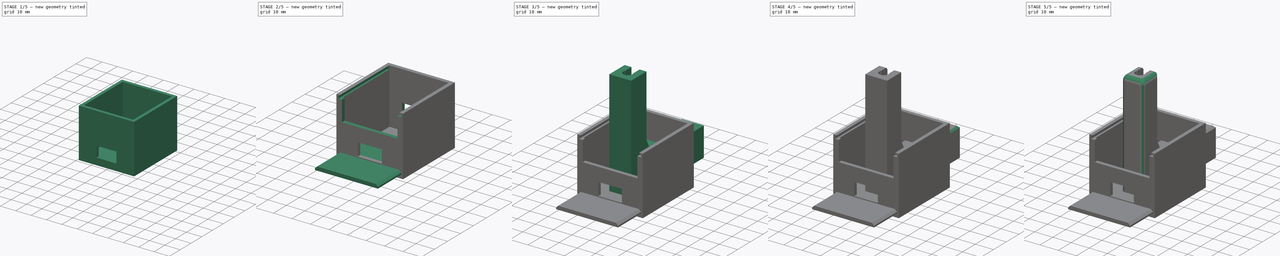
[diagram: build sequence overview — one tinted view per stage of 5, left to right]
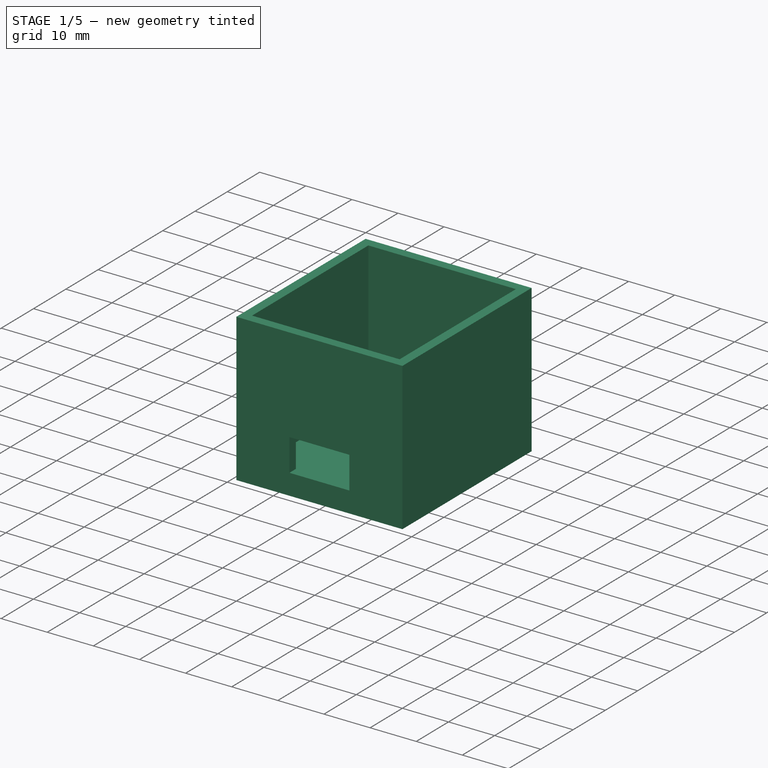
[diagram: stage 1 of 5 — iso view after this stage's code; geometry added in this stage tinted green]
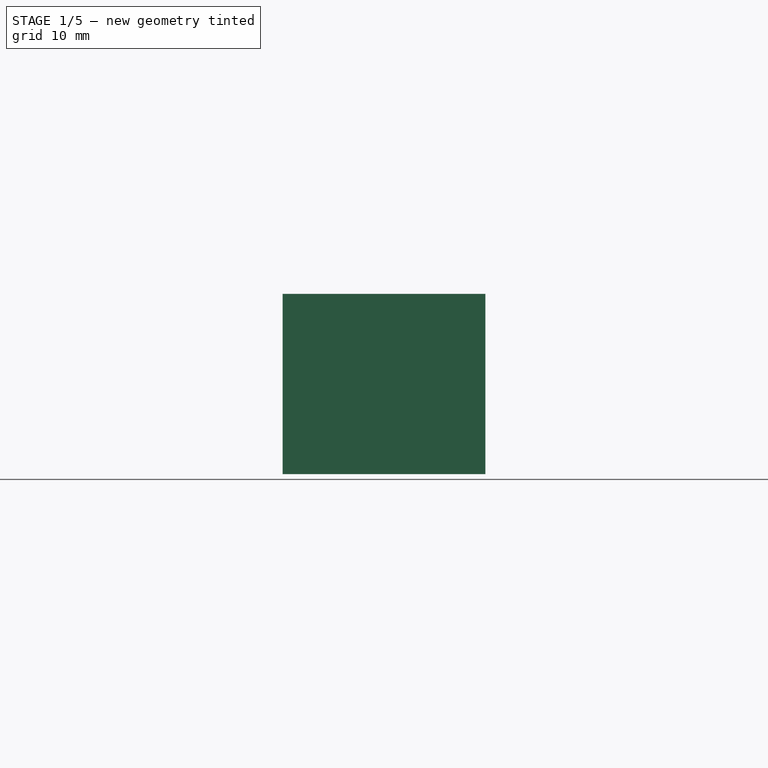
[diagram: stage 1 of 5 — front view after this stage's code; geometry added in this stage tinted green]
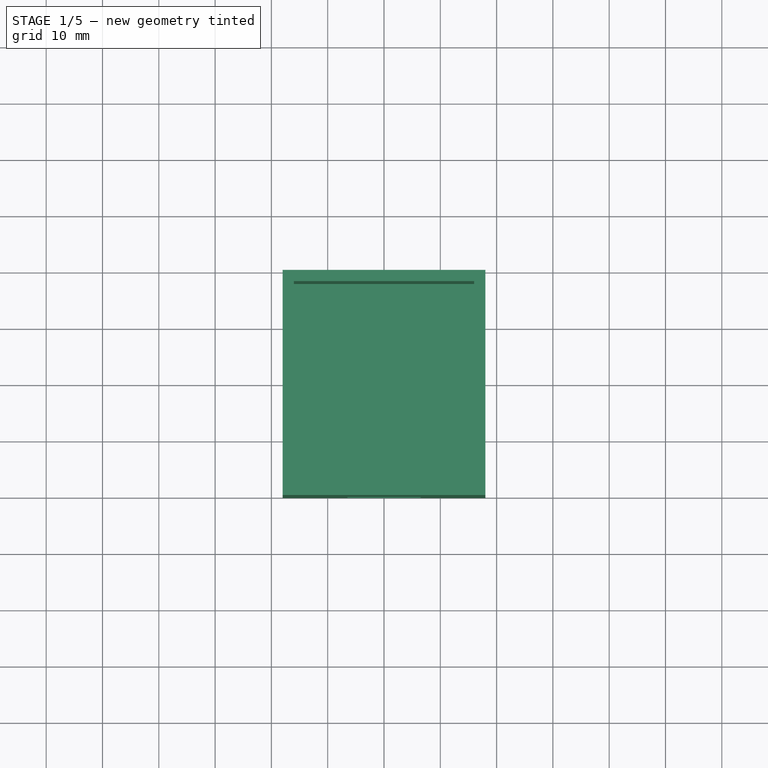
[diagram: stage 1 of 5 — top view after this stage's code; geometry added in this stage tinted green]
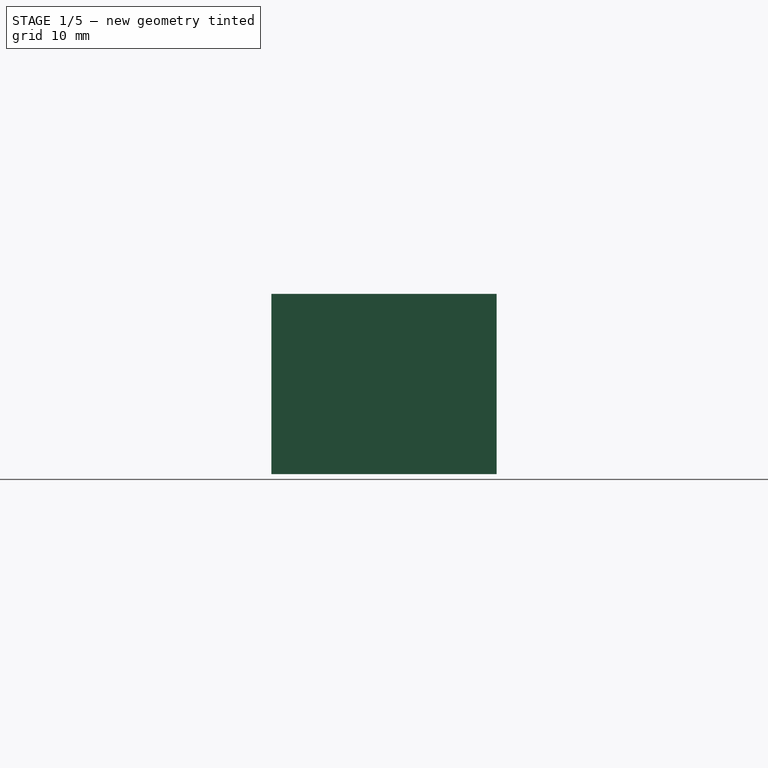
[diagram: stage 1 of 5 — right view after this stage's code; geometry added in this stage tinted green]
FCSTD DOCUMENT  (FreeCAD 1.0R39319 (Git))
Label: PioneerIRLedHolder
License: All rights reserved
LicenseURL: https://en.wikipedia.org/wiki/All_rights_reserved
objects: Sketcher::SketchObject×13, PartDesign::Pocket×8, PartDesign::Pad×4, PartDesign::Body×3, PartDesign::Chamfer×2, PartDesign::Fillet×2, PartDesign::Thickness×1
note: 80 computed .brp shape members not serialized (recipe doc carries the construction recipe); baked Part::Feature solids carry a one-line shape summary decoded from their .brp

FEATURE [PartDesign::Body] Body
  AllowCompound = false
  Group = -> [Sketch,Pad,Sketch001,Pocket,Sketch002,Pocket001,Sketch003,Pocket002,Sketch004,Pocket003,Chamfer,Fillet,Fillet001,Chamfer001]
  Origin = -> Origin
  Tip = -> Chamfer001
FEATURE [Sketcher::SketchObject] Sketch005
  ArcFitTolerance = 1e-06
  AttachmentSupport = -> [XY_Plane001]
  FullyConstrained = true
  MakeInternals = false
  MapMode = 5
  sketch-geometry (5):
    g0: LineSegment StartX=-16 StartY=-18 StartZ=0 EndX=16 EndY=-18 EndZ=0
    g1: LineSegment StartX=16 StartY=-18 StartZ=0 EndX=16 EndY=18 EndZ=0
    g2: LineSegment StartX=16 StartY=18 StartZ=0 EndX=-16 EndY=18 EndZ=0
    g3: LineSegment StartX=-16 StartY=18 StartZ=0 EndX=-16 EndY=-18 EndZ=0
    g4: GeomPoint [constr] X=0 Y=0 Z=0
  constraints (12):
    c: Coincident(g0,g1)
    c: Coincident(g1,g2)
    c: Coincident(g2,g3)
    c: Coincident(g3,g0)
    c: Horizontal(g0)
    c: Horizontal(g2)
    c: Vertical(g1)
    c: Vertical(g3)
    c: Symmetric(g2,g0,g4)
    c: Distance(g1,g3) = 32
    c: Distance(g0,g2) = 36
    c: Coincident(g4,g-1)
FEATURE [PartDesign::Pad] Pad001
  Direction = (0,0,1)
  Length = 30
  Length2 = 10
  Profile = -> Sketch005
  ReferenceAxis = -> Sketch005 [N_Axis]
  Refine = true
  Suppressed = false
  Type = 0
FEATURE [PartDesign::Body] Body002  label="CoverBody"
  AllowCompound = false
  Group = -> [Sketch010,Pad003,Sketch011,Pad004]
  Origin = -> Origin002
  Tip = -> Pad004
FEATURE [PartDesign::Thickness] Thickness
  Base = -> Pad001 [Face6]
  BaseFeature = -> Pad001
  Intersection = false
  Join = 1
  Mode = 0
  Refine = true
  SupportTransform = false
  Suppressed = false
  Value = 2
FEATURE [PartDesign::Pocket] Pocket004
  BaseFeature = -> Thickness
  Direction = (0,1,-2e-16)
  Length = 5
  Length2 = 5
  Profile = -> Sketch006
  ReferenceAxis = -> Sketch006 [N_Axis]
  Refine = true
  Reversed = true
  Suppressed = false
  Type = 1
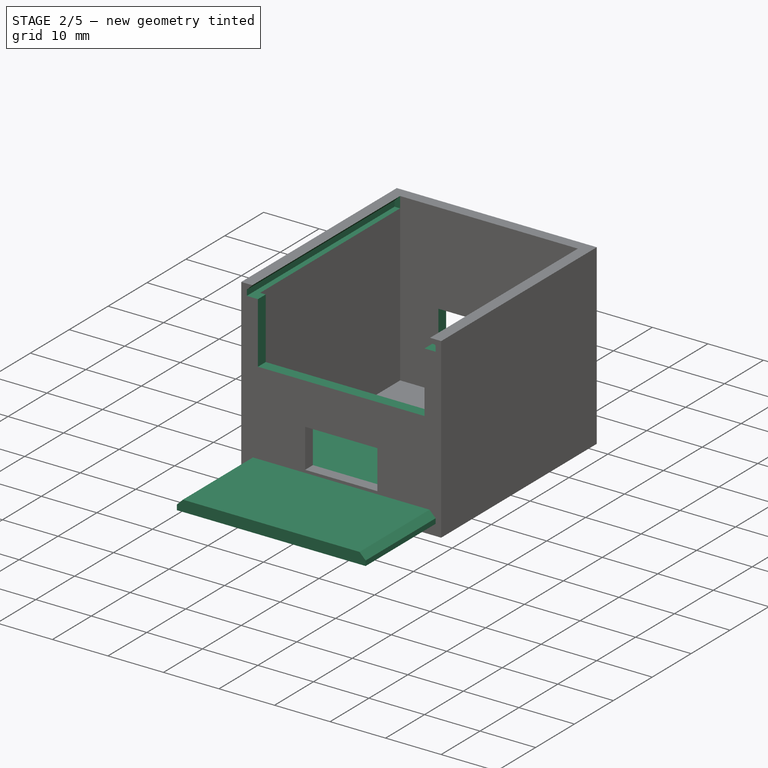
[diagram: stage 2 of 5 — iso view after this stage's code; geometry added in this stage tinted green]
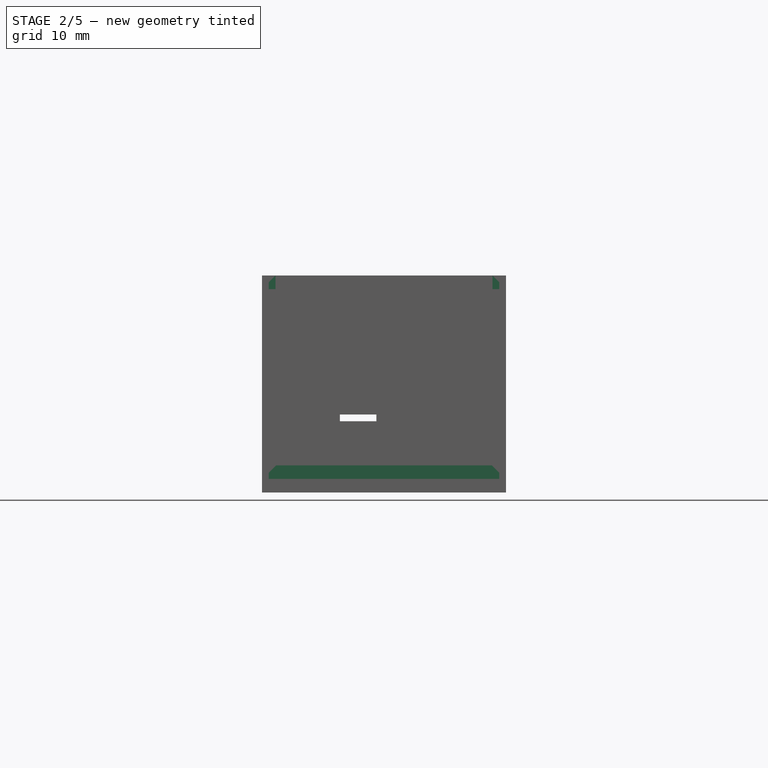
[diagram: stage 2 of 5 — front view after this stage's code; geometry added in this stage tinted green]
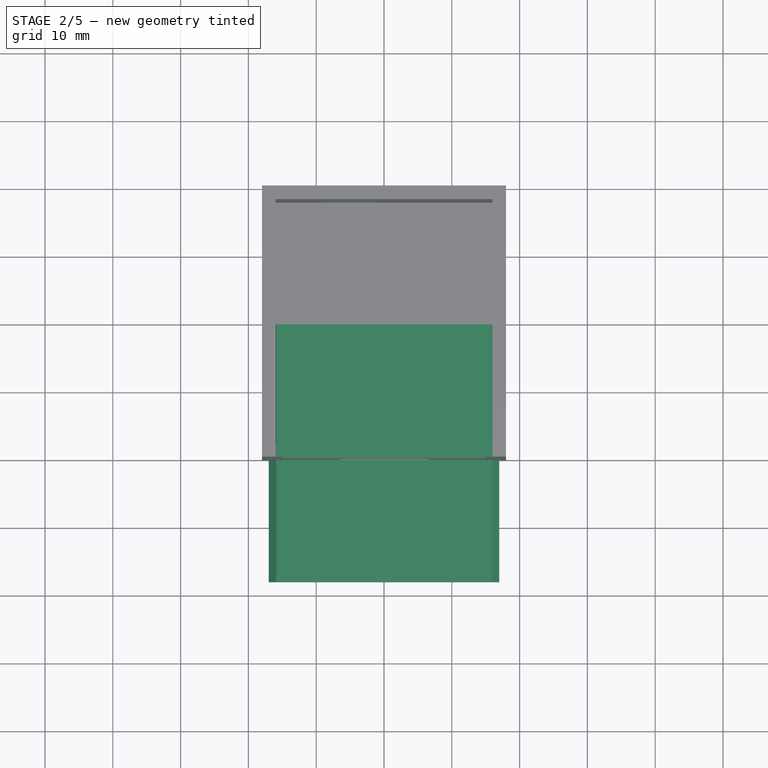
[diagram: stage 2 of 5 — top view after this stage's code; geometry added in this stage tinted green]
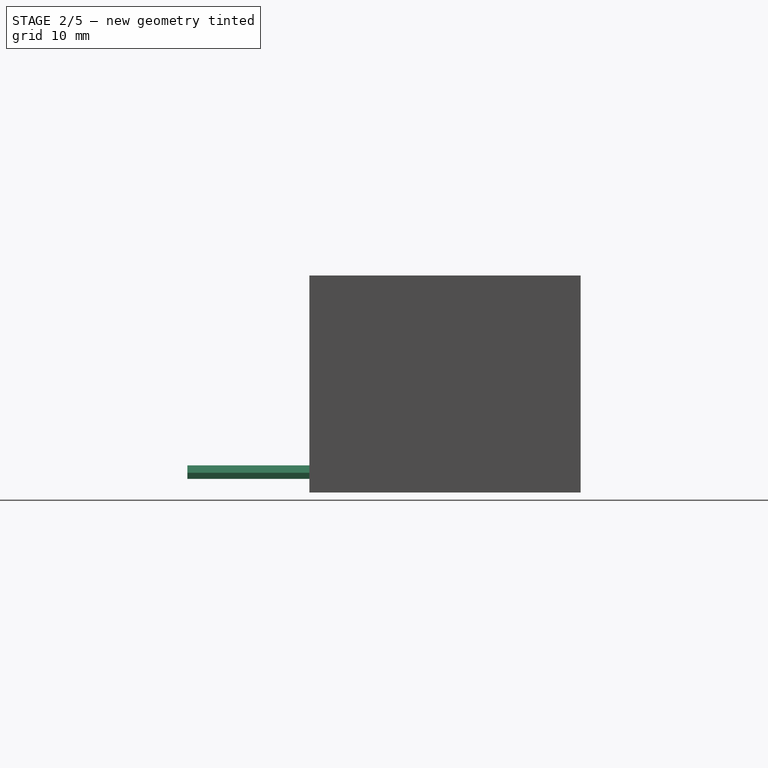
[diagram: stage 2 of 5 — right view after this stage's code; geometry added in this stage tinted green]
FEATURE [Sketcher::SketchObject] Sketch006
  ArcFitTolerance = 1e-06
  AttachmentSupport = -> [XZ_Plane001]
  FullyConstrained = true
  MakeInternals = false
  MapMode = 5
  Placement = pos=(0,0,0) rot=(1,0,0;1.5708rad)
  sketch-geometry (5):
    g0: LineSegment StartX=-6.5 StartY=9.5 StartZ=0 EndX=-6.5 EndY=2.5 EndZ=0
    g1: LineSegment StartX=-6.5 StartY=2.5 StartZ=0 EndX=6.5 EndY=2.5 EndZ=0
    g2: LineSegment StartX=6.5 StartY=2.5 StartZ=0 EndX=6.5 EndY=9.5 EndZ=0
    g3: LineSegment StartX=6.5 StartY=9.5 StartZ=0 EndX=-6.5 EndY=9.5 EndZ=0
    g4: GeomPoint [constr] X=0 Y=6 Z=0
  constraints (13):
    c: Coincident(g0,g1)
    c: Coincident(g1,g2)
    c: Coincident(g2,g3)
    c: Coincident(g3,g0)
    c: Vertical(g0)
    c: Vertical(g2)
    c: Horizontal(g1)
    c: Horizontal(g3)
    c: Symmetric(g2,g0,g4)
    c: PointOnObject(g4,g-2)
    c: DistanceY(g2,g2) = 7
    c: DistanceX(g3,g3) = 13
    c: DistanceY(g-1,g4) = 6
FEATURE [Sketcher::SketchObject] Sketch007
  ArcFitTolerance = 1e-06
  AttachmentSupport = -> [XZ_Plane001]
  FullyConstrained = true
  MakeInternals = false
  MapMode = 5
  Placement = pos=(0,0,0) rot=(1,0,0;1.5708rad)
  expr: Constraints[12] = -2.56 * 2
  sketch-geometry (5):
    g0: LineSegment StartX=-9.12 StartY=8.5 StartZ=0 EndX=-1.12 EndY=8.5 EndZ=0
    g1: LineSegment StartX=-1.12 StartY=8.5 StartZ=0 EndX=-1.12 EndY=13.5 EndZ=0
    g2: LineSegment StartX=-1.12 StartY=13.5 StartZ=0 EndX=-9.12 EndY=13.5 EndZ=0
    g3: LineSegment StartX=-9.12 StartY=13.5 StartZ=0 EndX=-9.12 EndY=8.5 EndZ=0
    g4: GeomPoint [constr] X=-5.12 Y=11 Z=0
  constraints (13):
    c: Coincident(g0,g1)
    c: Coincident(g1,g2)
    c: Coincident(g2,g3)
    c: Coincident(g3,g0)
    c: Horizontal(g0)
    c: Horizontal(g2)
    c: Vertical(g1)
    c: Vertical(g3)
    c: Symmetric(g2,g0,g4)
    c: Distance(g1,g3) = 8
    c: Distance(g0,g2) = 5
    c: DistanceY(g-1,g4) = 11
    c: DistanceX(g-1,g4) = -5.12
FEATURE [Sketcher::SketchObject] Sketch009
  ArcFitTolerance = 1e-06
  AttachmentSupport = -> [XY_Plane001]
  FullyConstrained = true
  MakeInternals = false
  MapMode = 5
  sketch-geometry (11):
    g0: LineSegment StartX=-29 StartY=7.5 StartZ=0 EndX=-29 EndY=-7.5 EndZ=0
    g1: LineSegment StartX=-24 StartY=-12.5 StartZ=0 EndX=-14 EndY=-12.5 EndZ=0
    g2: LineSegment StartX=-14 StartY=-12.5 StartZ=0 EndX=-14 EndY=12.5 EndZ=0
    g3: LineSegment StartX=-14 StartY=12.5 StartZ=0 EndX=-24 EndY=12.5 EndZ=0
    g4: GeomPoint [constr] X=-21.5 Y=0 Z=0
    g5: ArcOfCircle CenterX=-24 CenterY=7.5 CenterZ=0 NormalX=0 NormalY=0 NormalZ=1 AngleXU=0 Radius=5 StartAngle=1.5708 EndAngle=3.14159
    g6: GeomPoint [constr] X=-29 Y=12.5 Z=0
    g7: ArcOfCircle CenterX=-24 CenterY=-7.5 CenterZ=0 NormalX=0 NormalY=0 NormalZ=1 AngleXU=0 Radius=5 StartAngle=3.14159 EndAngle=4.71239
    g8: GeomPoint [constr] X=-29 Y=-12.5 Z=0
    g9: Circle CenterX=-24 CenterY=7.5 CenterZ=0 NormalX=0 NormalY=0 NormalZ=1 AngleXU=0 Radius=2.5
    g10: Circle CenterX=-24 CenterY=-7.5 CenterZ=0 NormalX=0 NormalY=0 NormalZ=1 AngleXU=0 Radius=2.5
  constraints (25):
    c: Coincident(g1,g2)
    c: Coincident(g2,g3)
    c: Vertical(g0)
    c: Vertical(g2)
    c: Horizontal(g1)
    c: Horizontal(g3)
    c: Symmetric(g2,g6,g4)
    c: PointOnObject(g4,g-1)
    c: DistanceY(g8,g6) = 25
    c: DistanceX(g6,g3) = 15
    c: PointOnObject(g6,g3)
    c: PointOnObject(g6,g0)
    c: Tangent(g3,g5) = -1.5708
    c: Tangent(g0,g5) = -1.5708
    c: PointOnObject(g8,g0)
    c: PointOnObject(g8,g1)
    c: Tangent(g0,g7) = -1.5708
    c: Tangent(g1,g7) = -1.5708
    c: Radius(g5) = 5
    c: Equal(g5,g7)
    c: Diameter(g9) = 5
    c: Coincident(g9,g5)
    c: Coincident(g10,g7)
    c: Equal(g10,g9)
    c: DistanceX(g5,g-1) = 24
FEATURE [Sketcher::SketchObject] Sketch010
  ArcFitTolerance = 1e-06
  AttachmentSupport = -> [XZ_Plane002]
  FullyConstrained = true
  MakeInternals = false
  MapMode = 5
  Placement = pos=(0,0,0) rot=(1,0,0;1.5708rad)
  sketch-geometry (8):
    g0: LineSegment StartX=-17 StartY=0 StartZ=0 EndX=17 EndY=0 EndZ=0
    g1: LineSegment StartX=-17 StartY=0 StartZ=0 EndX=-17 EndY=0.9 EndZ=0
    g2: LineSegment StartX=-17 StartY=0.9 StartZ=0 EndX=-15.9 EndY=2 EndZ=0
    g3: LineSegment StartX=-15.9 StartY=2 StartZ=0 EndX=15.9 EndY=2 EndZ=0
    g4: LineSegment StartX=15.9 StartY=2 StartZ=0 EndX=17 EndY=0.9 EndZ=0
    g5: LineSegment StartX=17 StartY=0.9 StartZ=0 EndX=17 EndY=0 EndZ=0
    g6: LineSegment [constr] StartX=-17 StartY=0.9 StartZ=0 EndX=-15.9 EndY=0.9 EndZ=0
    g7: LineSegment [constr] StartX=-15.9 StartY=0.9 StartZ=0 EndX=-15.9 EndY=2 EndZ=0
  constraints (20):
    c: Distance(g0) = 34
    c: PointOnObject(g0,g-1)
    c: Symmetric(g0,g0,g-1)
    c: Coincident(g0,g1)
    c: Vertical(g1)
    c: Coincident(g1,g2)
    c: Coincident(g2,g3)
    c: Coincident(g3,g4)
    c: Coincident(g4,g5)
    c: Coincident(g5,g0)
    c: Symmetric(g1,g4,g-2)
    c: Symmetric(g3,g2,g-2)
    c: DistanceY(g0,g2) = 2
    c: DistanceY(g1,g1) = 0.9
    c: Coincident(g1,g6)
    c: Horizontal(g6)
    c: Coincident(g6,g7)
    c: Coincident(g7,g2)
    c: Vertical(g7)
    c: Equal(g7,g6)
FEATURE [PartDesign::Pad] Pad003
  Direction = (0,-1,2e-16)
  Length = 38
  Length2 = 10
  Placement = pos=(0,0,0) rot=(1,0,0;1.5708rad)
  Profile = -> Sketch010
  ReferenceAxis = -> Sketch010 [N_Axis]
  Refine = true
  Suppressed = false
  Type = 0
FEATURE [PartDesign::Pocket] Pocket005
  BaseFeature = -> Pocket004
  Direction = (0,1,-2e-16)
  Length = 5
  Length2 = 5
  Profile = -> Sketch007
  ReferenceAxis = -> Sketch007 [N_Axis]
  Refine = true
  Suppressed = false
  Type = 1
FEATURE [Sketcher::SketchObject] Sketch008
  ArcFitTolerance = 1e-06
  AttachmentSupport = -> [Pocket005]
  ExternalGeometry = -> [Pocket005]
  FullyConstrained = true
  MakeInternals = false
  MapMode = 5
  Placement = pos=(0,20,0) rot=(0,0.707107,0.707107;3.14159rad)
  sketch-geometry (6):
    g0: LineSegment StartX=-16 StartY=30 StartZ=0 EndX=16 EndY=30 EndZ=0
    g1: LineSegment StartX=16 StartY=30 StartZ=0 EndX=17 EndY=29 EndZ=0
    g2: LineSegment StartX=-17 StartY=29 StartZ=0 EndX=-16 EndY=30 EndZ=0
    g3: LineSegment StartX=-17 StartY=29 StartZ=0 EndX=-17 EndY=28 EndZ=0
    g4: LineSegment StartX=-17 StartY=28 StartZ=0 EndX=17 EndY=28 EndZ=0
    g5: LineSegment StartX=17 StartY=28 StartZ=0 EndX=17 EndY=29 EndZ=0
  constraints (16):
    c: PointOnObject(g0,g-3)
    c: Coincident(g0,g1)
    c: Coincident(g2,g0)
    c: Coincident(g2,g3)
    c: Vertical(g3)
    c: Coincident(g3,g4)
    c: Horizontal(g4)
    c: Coincident(g4,g5)
    c: Coincident(g5,g1)
    c: Vertical(g5)
    c: Symmetric(g0,g0,g-2)
    c: Symmetric(g2,g1,g-2)
    c: DistanceY(g3,g3) = 1
    c: DistanceY(g2,g0) = 1
    c: DistanceX(g-3,g2) = 1
    c: DistanceX(g-3,g0) = 2
FEATURE [PartDesign::Pocket] Pocket006
  BaseFeature = -> Pocket005
  Direction = (0,-1,2e-16)
  Length = 100
  Length2 = -2
  Profile = -> Sketch008
  ReferenceAxis = -> Sketch008 [N_Axis]
  Refine = true
  Suppressed = false
  Type = 4
FEATURE [Sketcher::SketchObject] Sketch012
  ArcFitTolerance = 1e-06
  AttachmentSupport = -> [XZ_Plane001]
  FullyConstrained = true
  MakeInternals = false
  MapMode = 5
  Placement = pos=(0,0,0) rot=(1,0,0;1.5708rad)
  sketch-geometry (9):
    g0: LineSegment StartX=-15 StartY=17 StartZ=0 EndX=15 EndY=17 EndZ=0
    g1: LineSegment StartX=15 StartY=17 StartZ=0 EndX=15 EndY=27 EndZ=0
    g2: LineSegment StartX=15 StartY=27 StartZ=0 EndX=-15 EndY=27 EndZ=0
    g3: LineSegment StartX=-15 StartY=27 StartZ=0 EndX=-15 EndY=17 EndZ=0
    g4: GeomPoint [constr] X=0 Y=22 Z=0
    g5: LineSegment StartX=-15 StartY=27 StartZ=0 EndX=15 EndY=27 EndZ=0
    g6: LineSegment StartX=15 StartY=27 StartZ=0 EndX=15 EndY=37 EndZ=0
    g7: LineSegment StartX=15 StartY=37 StartZ=0 EndX=-15 EndY=37 EndZ=0
    g8: LineSegment StartX=-15 StartY=37 StartZ=0 EndX=-15 EndY=27 EndZ=0
  constraints (23):
    c: Coincident(g0,g1)
    c: Coincident(g1,g2)
    c: Coincident(g2,g3)
    c: Coincident(g3,g0)
    c: Horizontal(g0)
    c: Horizontal(g2)
    c: Vertical(g1)
    c: Vertical(g3)
    c: Symmetric(g2,g0,g4)
    c: Distance(g1,g3) = 30
    c: Distance(g0,g2) = 10
    c: PointOnObject(g4,g-2)
    c: DistanceY(g-1,g4) = 22
    c: Coincident(g5,g6)
    c: Coincident(g6,g7)
    c: Coincident(g7,g8)
    c: Coincident(g8,g5)
    c: Horizontal(g7)
    c: Vertical(g6)
    c: Vertical(g8)
    c: Coincident(g5,g2)
    c: Coincident(g1,g5)
    c: DistanceY(g6,g6) = 10
FEATURE [PartDesign::Pocket] Pocket007
  BaseFeature = -> Pocket006
  Direction = (0,1,-2e-16)
  Length = 5
  Length2 = 5
  Profile = -> Sketch012
  ReferenceAxis = -> Sketch012 [N_Axis]
  Refine = true
  Reversed = true
  Suppressed = false
  Type = 1
FEATURE [PartDesign::Body] Body001  label="BoxBody"
  AllowCompound = false
  Group = -> [Sketch005,Pad001,Thickness,Sketch006,Pocket004,Sketch007,Pocket005,Sketch008,Pocket006,Sketch009,Sketch012,Pocket007]
  Origin = -> Origin001
  Tip = -> Pocket007
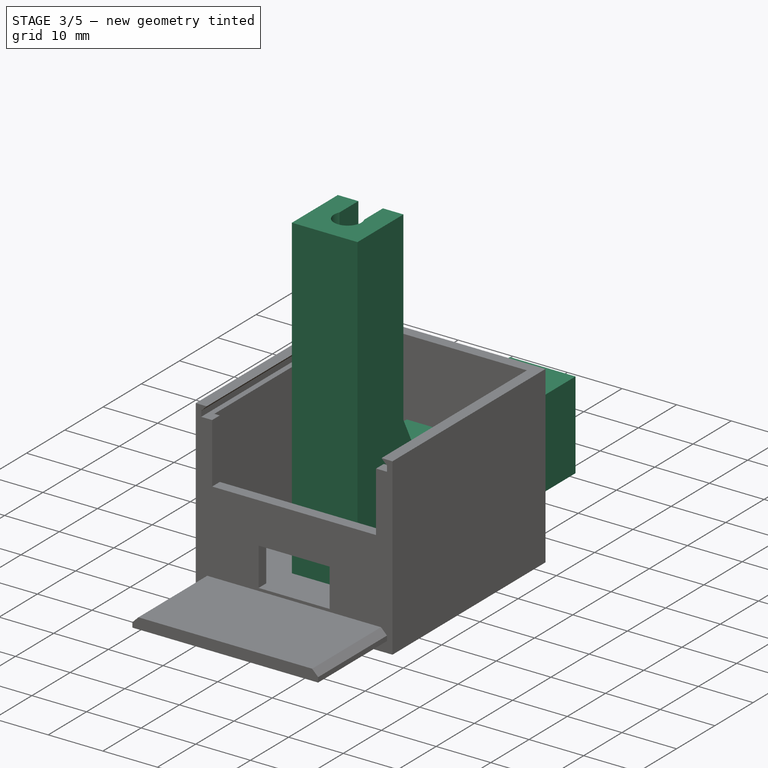
[diagram: stage 3 of 5 — iso view after this stage's code; geometry added in this stage tinted green]
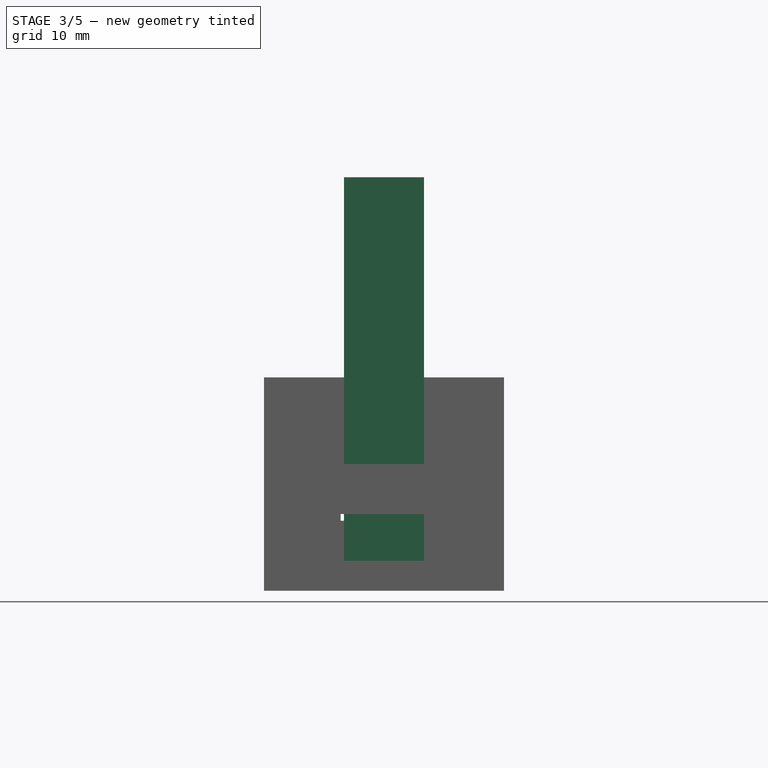
[diagram: stage 3 of 5 — front view after this stage's code; geometry added in this stage tinted green]
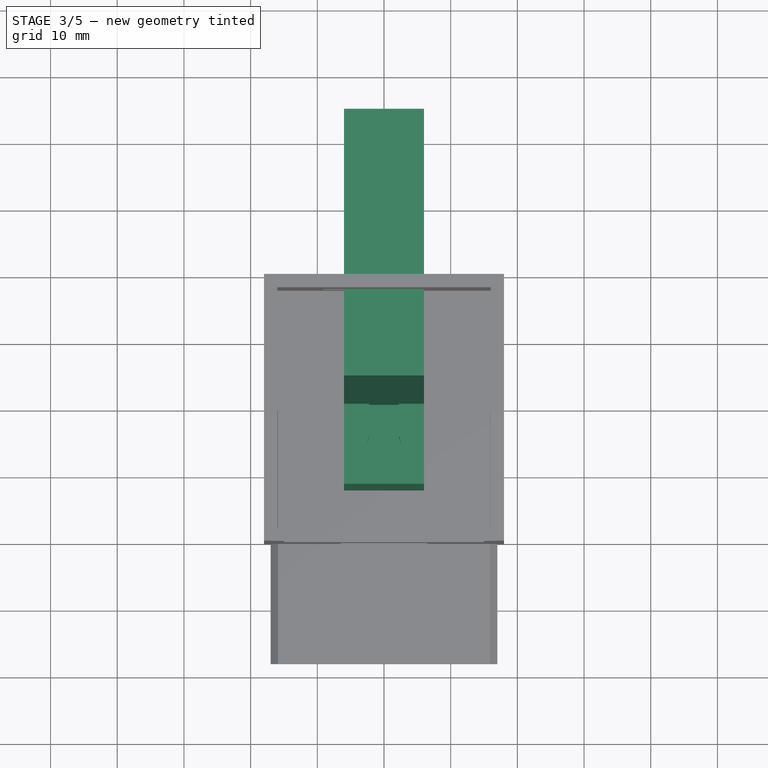
[diagram: stage 3 of 5 — top view after this stage's code; geometry added in this stage tinted green]
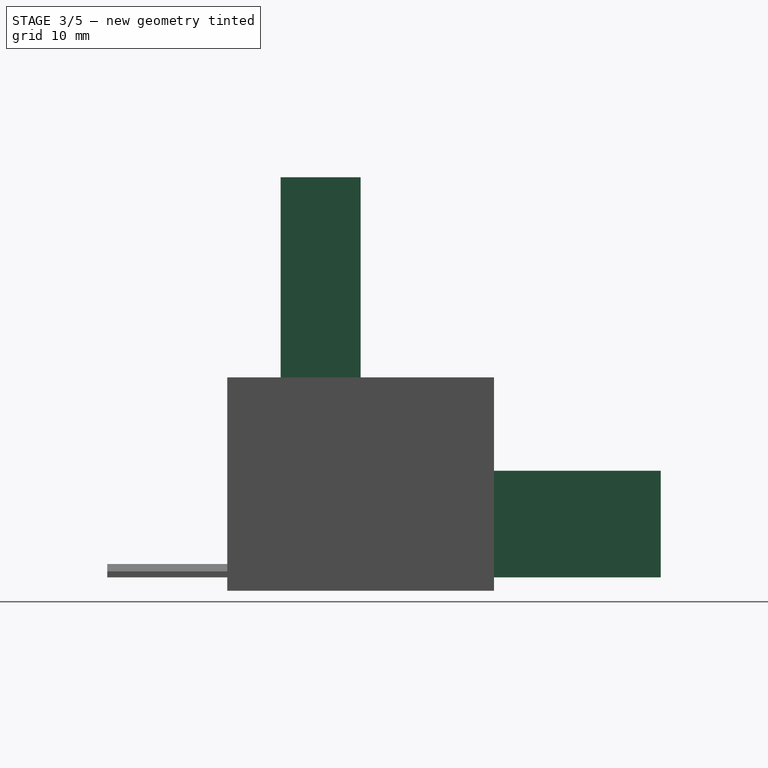
[diagram: stage 3 of 5 — right view after this stage's code; geometry added in this stage tinted green]
FEATURE [Sketcher::SketchObject] Sketch
  ArcFitTolerance = 1e-06
  AttachmentSupport = -> [YZ_Plane]
  FullyConstrained = true
  MakeInternals = false
  MapMode = 5
  Placement = pos=(0,0,0) rot=(0.57735,0.57735,0.57735;2.0944rad)
  sketch-geometry (7):
    g0: LineSegment StartX=45 StartY=0 StartZ=0 EndX=-12 EndY=0 EndZ=0
    g1: LineSegment StartX=-12 StartY=0 StartZ=0 EndX=-12 EndY=60 EndZ=0
    g2: LineSegment StartX=-12 StartY=60 StartZ=0 EndX=0 EndY=60 EndZ=0
    g3: LineSegment StartX=5 StartY=16 StartZ=0 EndX=45 EndY=16 EndZ=0
    g4: LineSegment StartX=45 StartY=16 StartZ=0 EndX=45 EndY=0 EndZ=0
    g5: LineSegment StartX=0 StartY=60 StartZ=0 EndX=0 EndY=26 EndZ=0
    g6: LineSegment StartX=0 StartY=26 StartZ=0 EndX=5 EndY=16 EndZ=0
  constraints (21):
    c: PointOnObject(g0,g-1)
    c: PointOnObject(g0,g-1)
    c: Coincident(g0,g1)
    c: Vertical(g1)
    c: Coincident(g1,g2)
    c: PointOnObject(g2,g-2)
    c: Horizontal(g2)
    c: Coincident(g2,g5)
    c: Coincident(g6,g3)
    c: Horizontal(g3)
    c: Coincident(g3,g4)
    c: Coincident(g4,g0)
    c: Vertical(g4)
    c: DistanceY(g4,g4) = 16
    c: DistanceY(g1,g1) = 60
    c: DistanceX(g2,g2) = 12
    c: DistanceX(g3,g3) = 40
    c: Coincident(g5,g6)
    c: Vertical(g5)
    c: DistanceY(g3,g5) = 10
    c: DistanceX(g5,g3) = 5
FEATURE [PartDesign::Pad] Pad
  Direction = (1,0,0)
  Length = 12
  Length2 = 10
  Midplane = true
  Placement = pos=(0,0,0) rot=(1,1,1;2.0944rad)
  Profile = -> Sketch
  ReferenceAxis = -> Sketch [N_Axis]
  Refine = true
  Suppressed = false
  Type = 0
FEATURE [Sketcher::SketchObject] Sketch001
  ArcFitTolerance = 1e-06
  AttachmentSupport = -> [Pad]
  ExternalGeometry = -> [Pad]
  FullyConstrained = true
  MakeInternals = false
  MapMode = 5
  Placement = pos=(0,1.32e-14,60) rot=(0,0,-1;1.5708rad)
  sketch-geometry (6):
    g0: LineSegment StartX=-8 StartY=2.25 StartZ=0 EndX=-8 EndY=-2.25 EndZ=0
    g1: LineSegment StartX=-8 StartY=-2.25 StartZ=0 EndX=4.91028 EndY=-2.25 EndZ=0
    g2: LineSegment [constr] StartX=4.91028 StartY=-2.25 StartZ=0 EndX=4.91028 EndY=2.25 EndZ=0
    g3: LineSegment StartX=4.91028 StartY=2.25 StartZ=0 EndX=-8 EndY=2.25 EndZ=0
    g4: GeomPoint [constr] X=-1.54486 Y=-1.7e-14 Z=0
    g5: ArcOfCircle CenterX=6 CenterY=-1.48e-14 CenterZ=0 NormalX=0 NormalY=0 NormalZ=1 AngleXU=0 Radius=2.5 StartAngle=4.26136 EndAngle=8.30501
  constraints (15):
    c: Coincident(g0,g1)
    c: Coincident(g1,g2)
    c: Coincident(g2,g3)
    c: Coincident(g3,g0)
    c: Vertical(g0)
    c: Vertical(g2)
    c: Horizontal(g1)
    c: Horizontal(g3)
    c: Symmetric(g2,g0,g4)
    c: DistanceY(g2,g2) = 4.5
    c: Diameter(g5) = 5
    c: Coincident(g5,g2)
    c: Coincident(g1,g5)
    c: Symmetric(g-3,g-4,g5)
    c: DistanceX(g0,g-1) = 8
FEATURE [PartDesign::Pocket] Pocket
  BaseFeature = -> Pad
  Direction = (0,0,-1)
  Length = 10
  Length2 = 5
  Placement = pos=(0,0,0) rot=(1,1,1;2.0944rad)
  Profile = -> Sketch001
  ReferenceAxis = -> Sketch001 [N_Axis]
  Refine = true
  Suppressed = false
  Type = 0
FEATURE [Sketcher::SketchObject] Sketch011
  ArcFitTolerance = 1e-06
  AttachmentSupport = -> [YZ_Plane002]
  FullyConstrained = true
  MakeInternals = false
  MapMode = 5
  Placement = pos=(0,0,0) rot=(0.57735,0.57735,0.57735;2.0944rad)
  sketch-geometry (3):
    g0: LineSegment StartX=-4 StartY=0 StartZ=0 EndX=-2 EndY=0 EndZ=0
    g1: ArcOfCircle CenterX=-3 CenterY=0.75 CenterZ=0 NormalX=0 NormalY=0 NormalZ=1 AngleXU=0 Radius=1.25 StartAngle=3.78509 EndAngle=5.63968
    g2: LineSegment [constr] StartX=0 StartY=-0.5 StartZ=0 EndX=-5 EndY=-0.5 EndZ=0
  constraints (11):
    c: Horizontal(g0)
    c: Coincident(g1,g0)
    c: Coincident(g1,g0)
    c: Horizontal(g2)
    c: Tangent(g2,g1)
    c: DistanceX(g0,g0) = 2
    c: DistanceY(g2,g0) = 0.5
    c: DistanceX(g2,g2) = 5
    c: DistanceX(g0,g-1) = 2
    c: PointOnObject(g0,g-1)
    c: PointOnObject(g2,g-2)
FEATURE [PartDesign::Pad] Pad004
  BaseFeature = -> Pad003
  Direction = (1,0,0)
  Length = 32
  Length2 = 10
  Midplane = true
  Placement = pos=(0,0,0) rot=(1,0,0;1.5708rad)
  Profile = -> Sketch011
  ReferenceAxis = -> Sketch011 [N_Axis]
  Refine = true
  Suppressed = false
  Type = 0
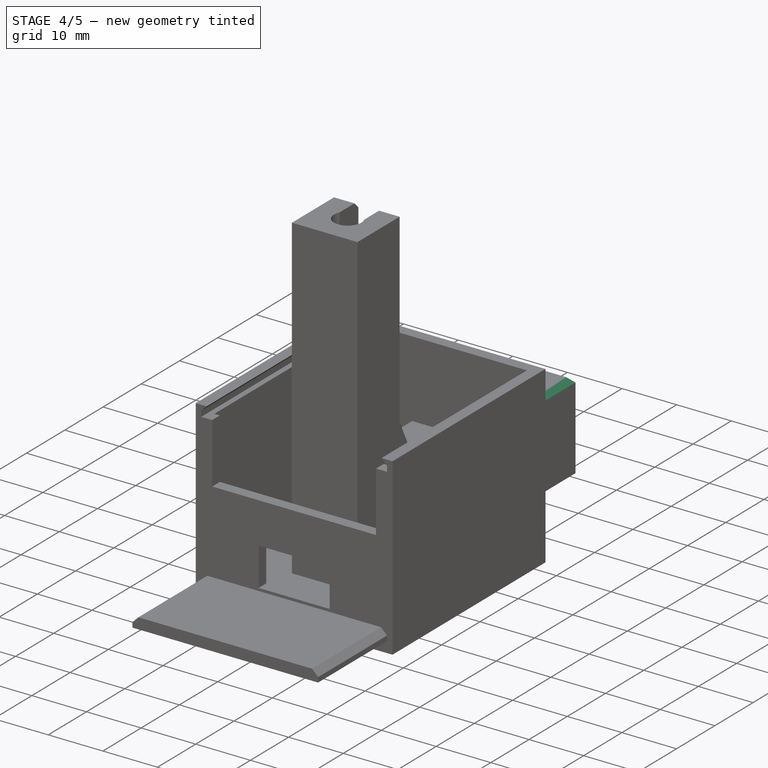
[diagram: stage 4 of 5 — iso view after this stage's code; geometry added in this stage tinted green]
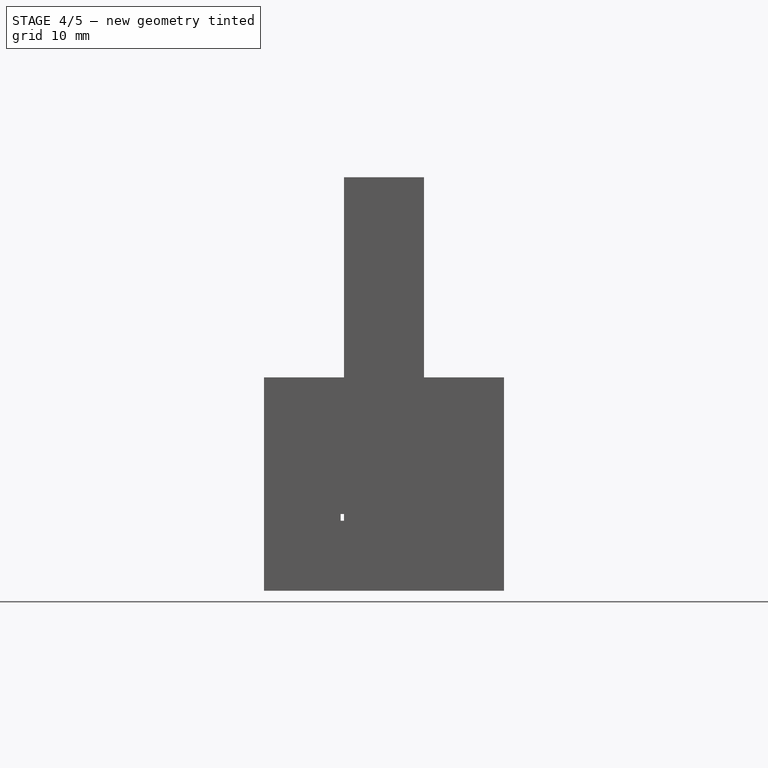
[diagram: stage 4 of 5 — front view after this stage's code; geometry added in this stage tinted green]
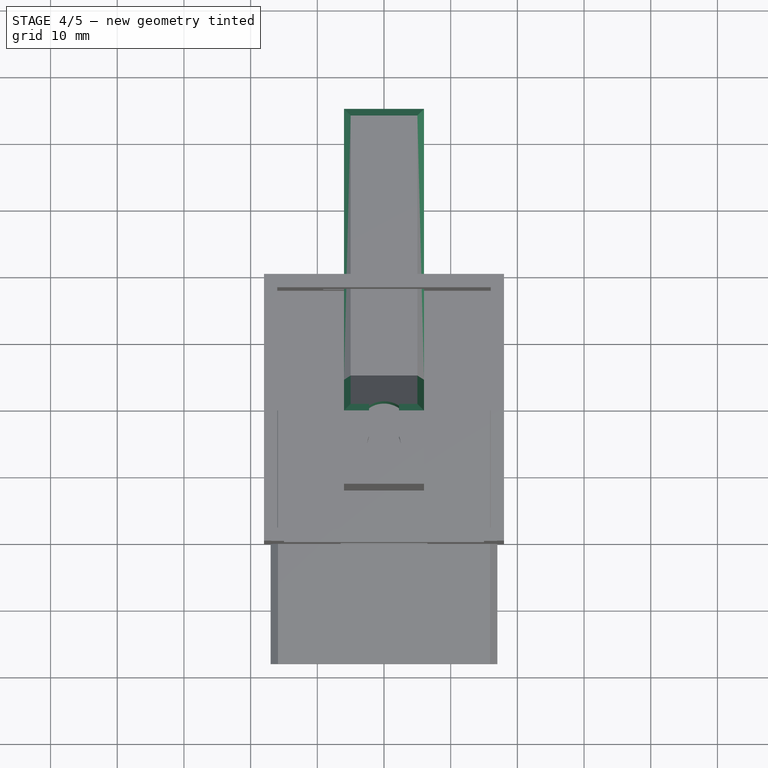
[diagram: stage 4 of 5 — top view after this stage's code; geometry added in this stage tinted green]
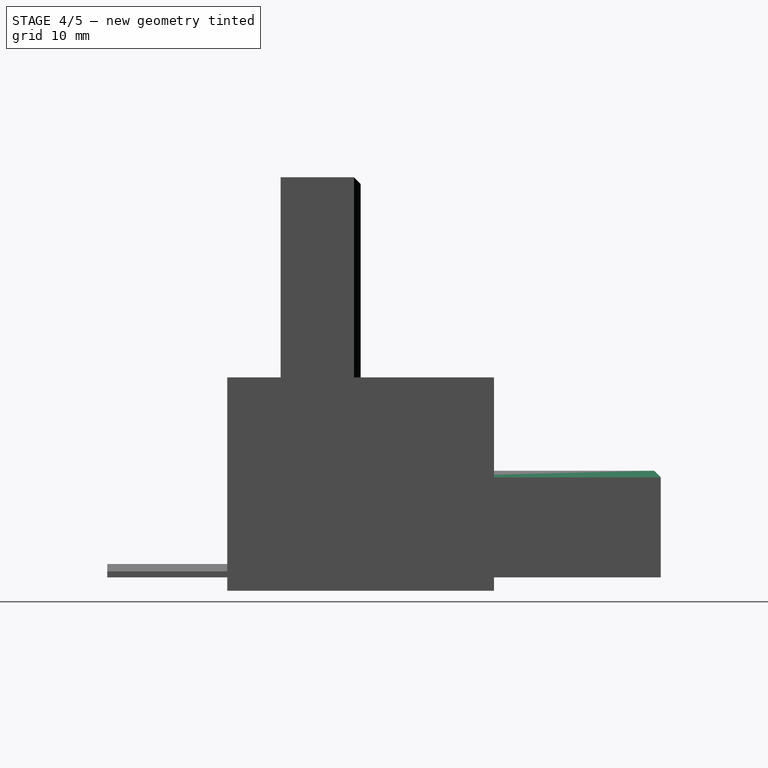
[diagram: stage 4 of 5 — right view after this stage's code; geometry added in this stage tinted green]
FEATURE [Sketcher::SketchObject] Sketch002
  ArcFitTolerance = 1e-06
  AttachmentOffset = pos=(0,0,-5) rot=(0,0,1;0rad)
  AttachmentSupport = -> [Pad]
  ExternalGeometry = -> [Pad]
  FullyConstrained = true
  MakeInternals = false
  MapMode = 5
  Placement = pos=(0,1.32e-14,55) rot=(0,0,-1;1.5708rad)
  sketch-geometry (6):
    g0: LineSegment StartX=-4 StartY=3 StartZ=0 EndX=-4 EndY=-3 EndZ=0
    g1: LineSegment StartX=-4 StartY=-3 StartZ=0 EndX=6 EndY=-3 EndZ=0
    g2: LineSegment [constr] StartX=6 StartY=-3 StartZ=0 EndX=6 EndY=3 EndZ=0
    g3: LineSegment StartX=6 StartY=3 StartZ=0 EndX=-4 EndY=3 EndZ=0
    g4: GeomPoint [constr] X=1 Y=-1.53e-14 Z=0
    g5: ArcOfCircle CenterX=6 CenterY=-1.52e-14 CenterZ=0 NormalX=0 NormalY=0 NormalZ=1 AngleXU=0 Radius=3 StartAngle=4.71239 EndAngle=7.85398
  constraints (15):
    c: Coincident(g0,g1)
    c: Coincident(g1,g2)
    c: Coincident(g2,g3)
    c: Coincident(g3,g0)
    c: Vertical(g0)
    c: Vertical(g2)
    c: Horizontal(g1)
    c: Horizontal(g3)
    c: Symmetric(g2,g0,g4)
    c: Coincident(g5,g2)
    c: DistanceY(g2,g2) = 6
    c: Coincident(g5,g1)
    c: PointOnObject(g5,g2)
    c: Symmetric(g-3,g-4,g5)
    c: DistanceX(g1,g1) = 10
FEATURE [PartDesign::Pocket] Pocket001
  BaseFeature = -> Pocket
  Direction = (0,0,-1)
  Length = 1
  Length2 = 5
  Placement = pos=(0,0,0) rot=(1,1,1;2.0944rad)
  Profile = -> Sketch002
  ReferenceAxis = -> Sketch002 [N_Axis]
  Refine = true
  Suppressed = false
  Type = 0
FEATURE [Sketcher::SketchObject] Sketch003
  ArcFitTolerance = 1e-06
  AttachmentOffset = pos=(0,0,-10) rot=(0,0,1;0rad)
  AttachmentSupport = -> [Pad]
  FullyConstrained = true
  MakeInternals = false
  MapMode = 5
  Placement = pos=(0,1.32e-14,50) rot=(0,0,-1;1.5708rad)
  sketch-geometry (1):
    g0: Circle CenterX=3 CenterY=0 CenterZ=0 NormalX=0 NormalY=0 NormalZ=1 AngleXU=0 Radius=4
  constraints (3):
    c: Diameter(g0) = 8
    c: PointOnObject(g0,g-1)
    c: DistanceX(g-1,g0) = 3
FEATURE [PartDesign::Pocket] Pocket002
  BaseFeature = -> Pocket001
  Direction = (0,0,-1)
  Length = 5
  Length2 = 5
  Placement = pos=(0,0,0) rot=(1,1,1;2.0944rad)
  Profile = -> Sketch003
  ReferenceAxis = -> Sketch003 [N_Axis]
  Refine = true
  Suppressed = false
  Type = 1
FEATURE [Sketcher::SketchObject] Sketch004
  ArcFitTolerance = 1e-06
  AttachmentOffset = pos=(0,0,3) rot=(0,0,1;0rad)
  AttachmentSupport = -> [XZ_Plane]
  FullyConstrained = true
  MakeInternals = false
  MapMode = 5
  Placement = pos=(0,-3,7e-16) rot=(1,0,0;1.5708rad)
  sketch-geometry (1):
    g0: Circle CenterX=0 CenterY=0 CenterZ=0 NormalX=0 NormalY=0 NormalZ=1 AngleXU=0 Radius=4
  constraints (2):
    c: Diameter(g0) = 8
    c: Coincident(g0,g-1)
FEATURE [PartDesign::Pocket] Pocket003
  BaseFeature = -> Pocket002
  Direction = (0,1,-2e-16)
  Length = 5
  Length2 = 5
  Placement = pos=(0,0,0) rot=(1,1,1;2.0944rad)
  Profile = -> Sketch004
  ReferenceAxis = -> Sketch004 [N_Axis]
  Refine = true
  Suppressed = false
  Type = 1
FEATURE [PartDesign::Chamfer] Chamfer
  Angle = 45
  Base = -> Pocket003 [Edge34,Edge28,Edge23,Edge33,Edge27,Edge32,Edge26,Edge40,Edge54]
  BaseFeature = -> Pocket003
  ChamferType = 0
  FlipDirection = false
  Placement = pos=(0,0,0) rot=(1,1,1;2.0944rad)
  Refine = true
  Size = 1
  Size2 = 1
  SupportTransform = false
  Suppressed = false
  UseAllEdges = false
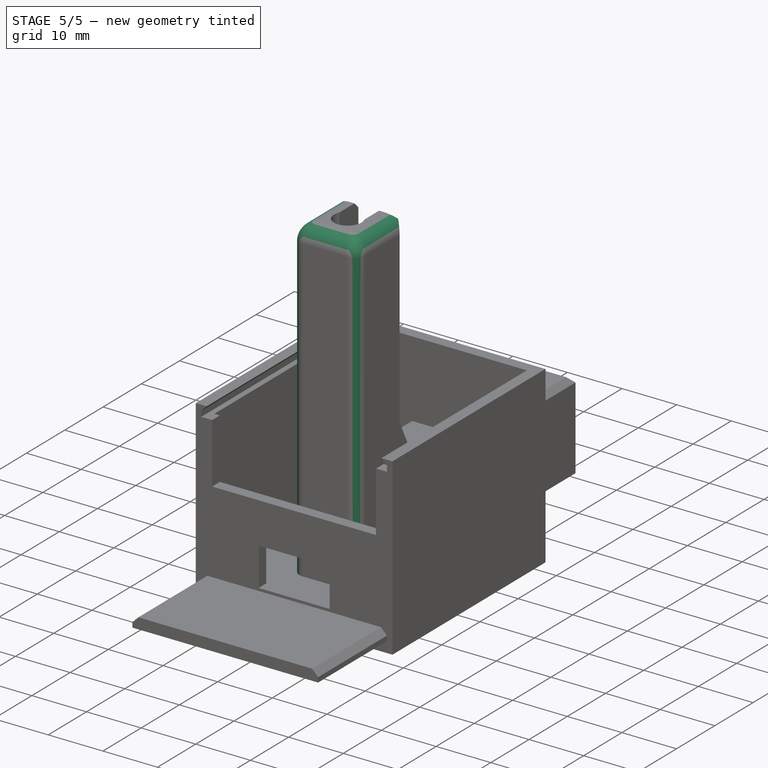
[diagram: stage 5 of 5 — iso view after this stage's code; geometry added in this stage tinted green]
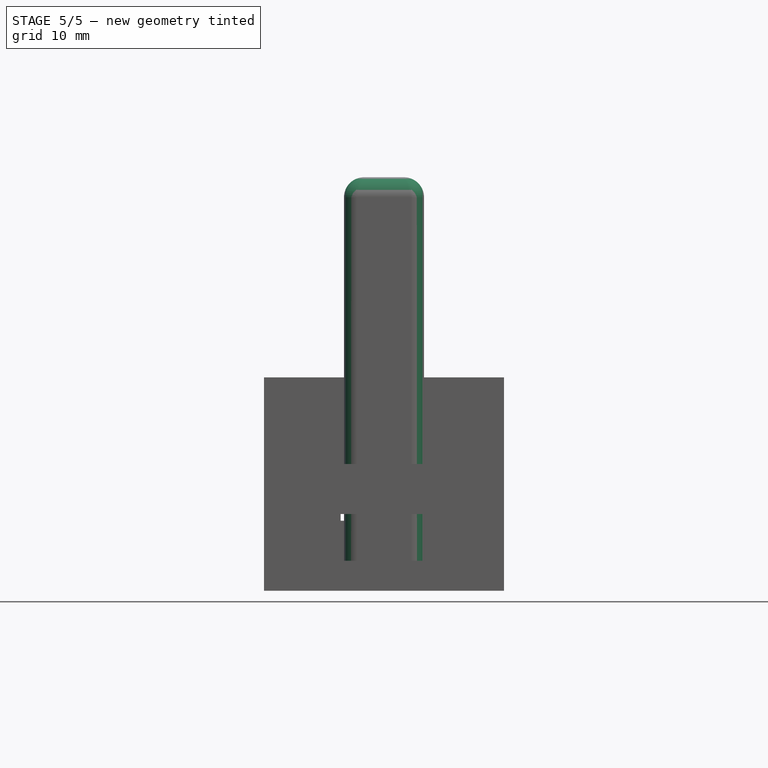
[diagram: stage 5 of 5 — front view after this stage's code; geometry added in this stage tinted green]
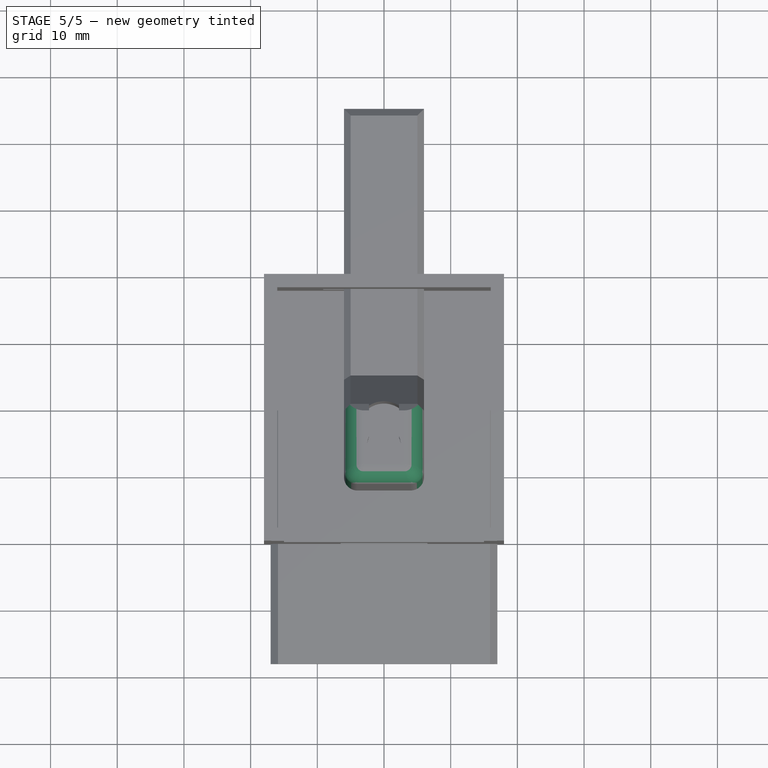
[diagram: stage 5 of 5 — top view after this stage's code; geometry added in this stage tinted green]
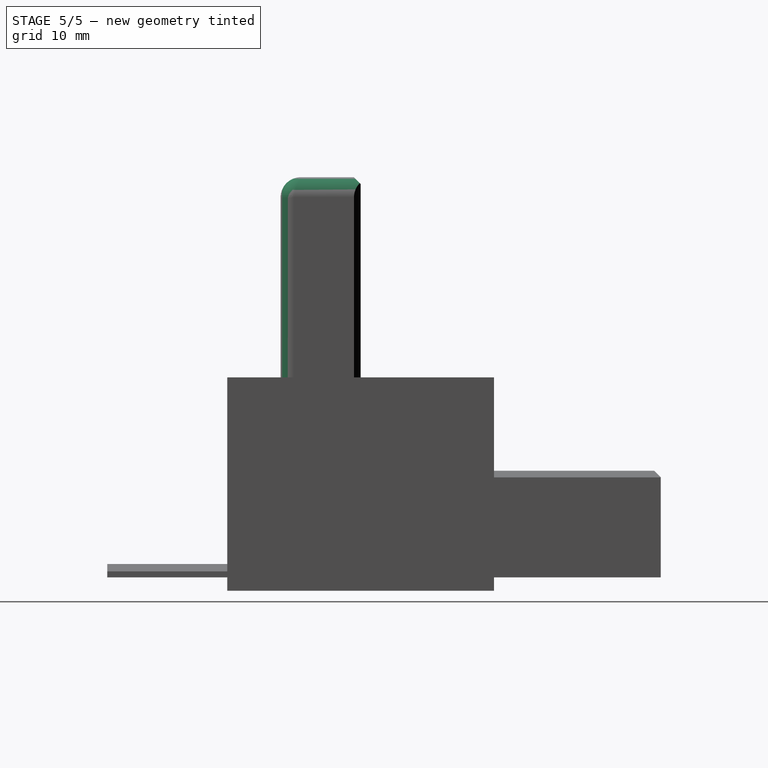
[diagram: stage 5 of 5 — right view after this stage's code; geometry added in this stage tinted green]
FEATURE [PartDesign::Fillet] Fillet
  Base = -> Chamfer [Edge9,Edge24]
  BaseFeature = -> Chamfer
  Placement = pos=(0,0,0) rot=(1,1,1;2.0944rad)
  Radius = 2
  Refine = true
  SupportTransform = false
  Suppressed = false
  UseAllEdges = false
FEATURE [PartDesign::Fillet] Fillet001
  Base = -> Fillet [Edge10,Edge14,Edge1]
  BaseFeature = -> Fillet
  Placement = pos=(0,0,0) rot=(1,1,1;2.0944rad)
  Radius = 3
  Refine = true
  SupportTransform = false
  Suppressed = false
  UseAllEdges = false
FEATURE [PartDesign::Chamfer] Chamfer001
  Angle = 45
  Base = -> Fillet001 [Edge80,Edge78,Edge86]
  BaseFeature = -> Fillet001
  ChamferType = 0
  FlipDirection = false
  Placement = pos=(0,0,0) rot=(1,1,1;2.0944rad)
  Refine = true
  Size = 0.49
  Size2 = 1
  SupportTransform = false
  Suppressed = false
  UseAllEdges = false
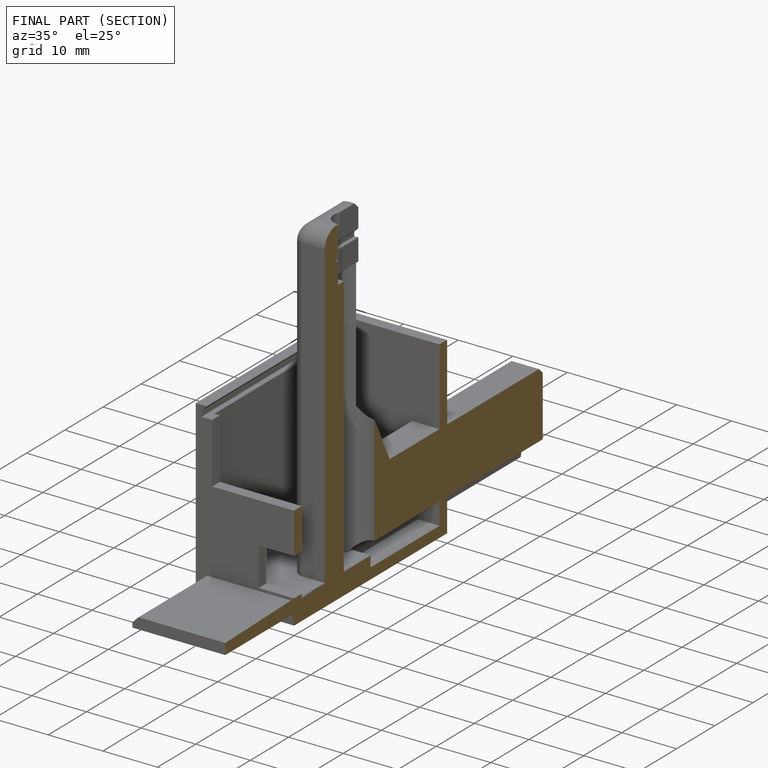
[diagram: finished part — half-section view (interior)]
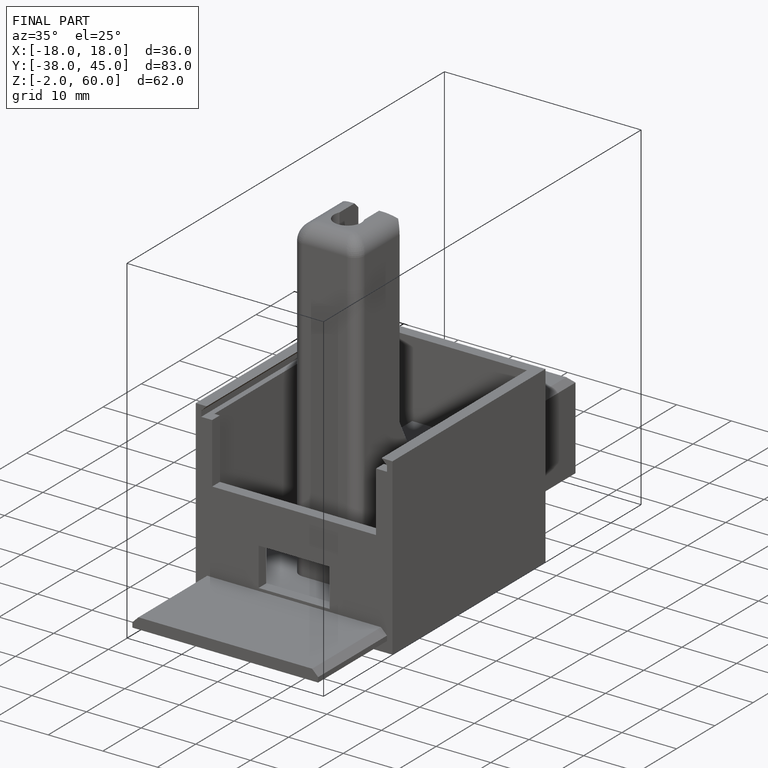
[diagram: finished part — iso view with bounding-box wireframe]
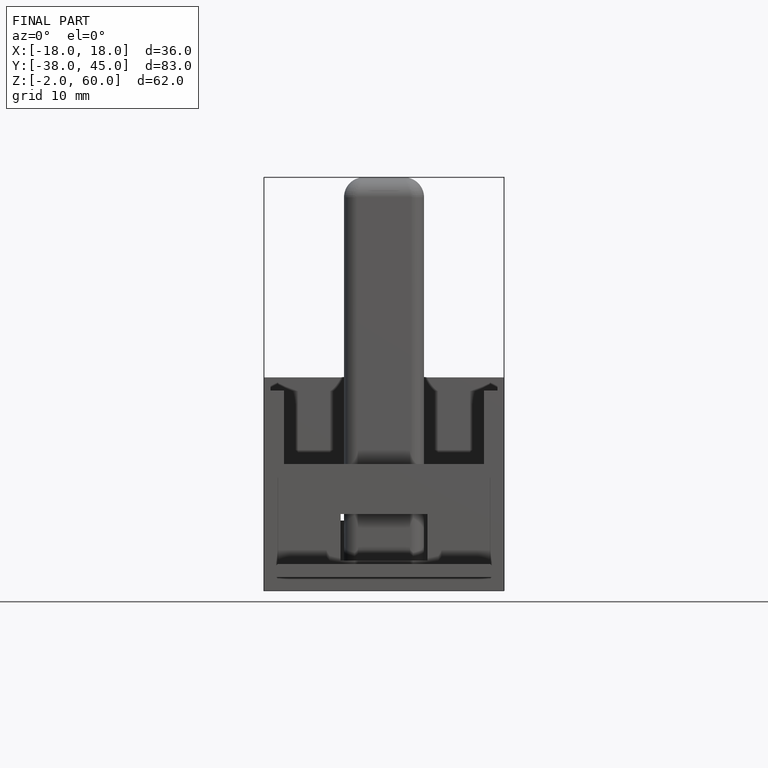
[diagram: finished part — front view with bounding-box wireframe]
